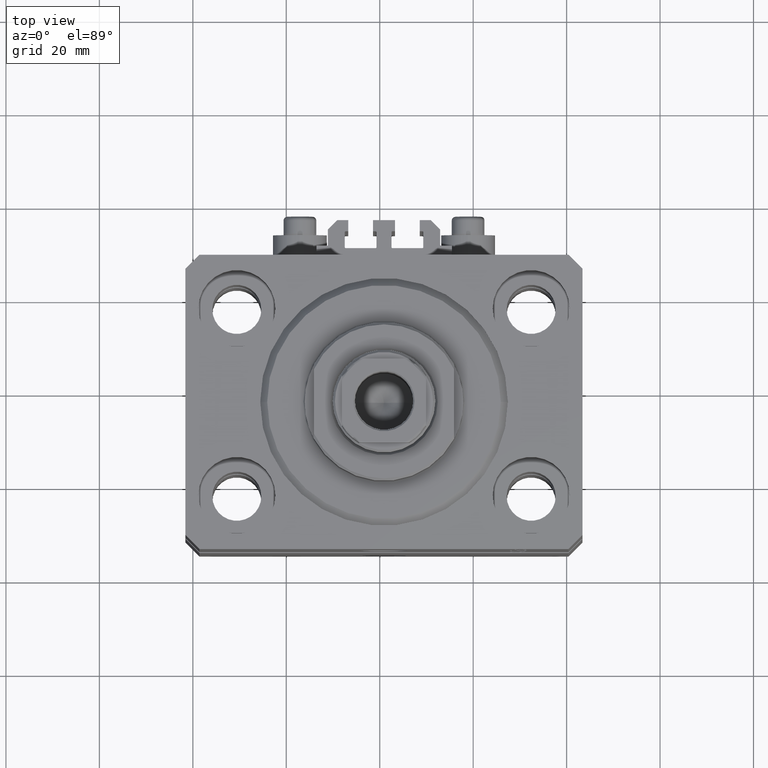
[diagram: clean part render]
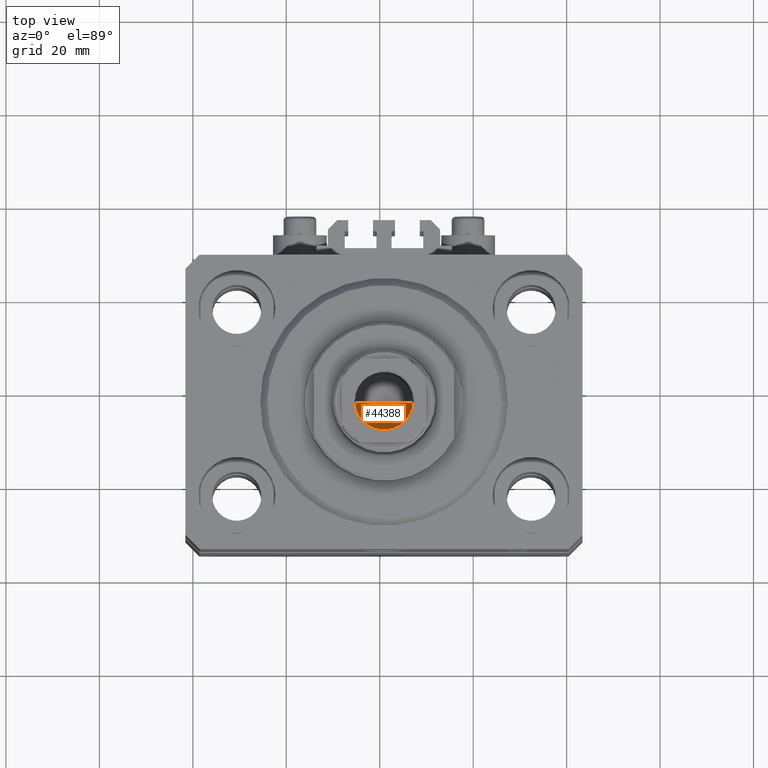
[diagram: same view with one face highlighted and labeled with its STEP entity id]
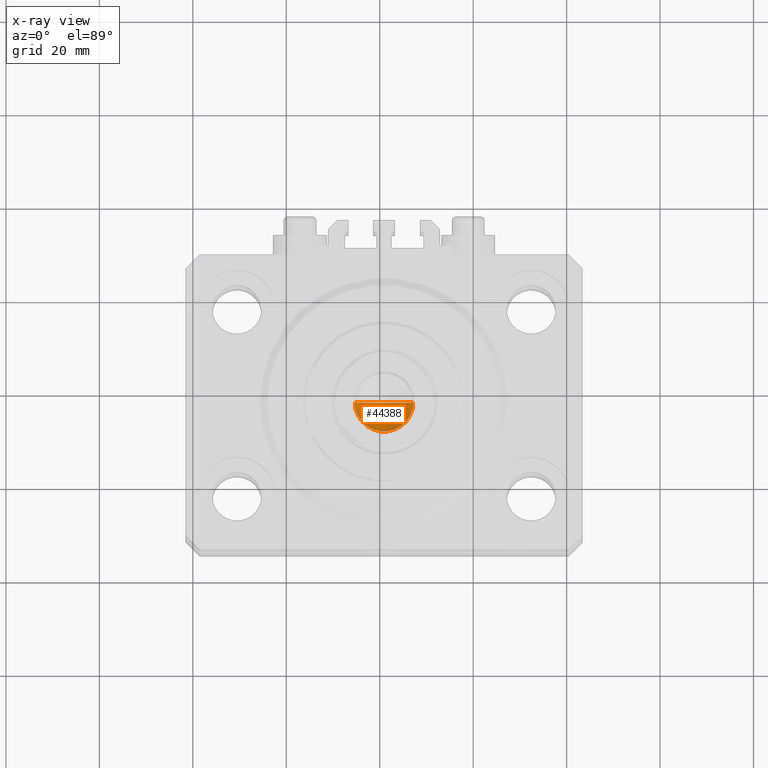
[diagram: x-ray of the same camera — body ghosted, the highlighted face saturated]
A machine part, top view. The second image highlights one B-rep face of the part: STEP entity #44388.
The next image is the same camera in x-ray: the body ghosted, the highlighted face saturated — about 9% of this face is hidden behind the body in this view.
In plain terms, the highlighted conical surface has half-angle 59 deg.
Its self-contained STEP definition (entity closure, byte-faithful):
#41 = VECTOR ( 'NONE', #4473, 1000.000000000000114 ) ;
#755 = VERTEX_POINT ( 'NONE', #16533 ) ;
#4473 = DIRECTION ( 'NONE',  ( -0.8571673007021122226, 1.049727191138618696E-16, 0.5150380749100541555 ) ) ;
#5418 = CIRCLE ( 'NONE', #43050, 6.249999999999993783 ) ;
#7922 = ORIENTED_EDGE ( 'NONE', *, *, #23461, .F. ) ;
#8710 = FACE_OUTER_BOUND ( 'NONE', #16933, .T. ) ;
#12475 = EDGE_CURVE ( 'NONE', #13252, #755, #5418, .T. ) ;
#12762 = VECTOR ( 'NONE', #36251, 1000.000000000000114 ) ;
#13252 = VERTEX_POINT ( 'NONE', #47177 ) ;
#13274 = DIRECTION ( 'NONE',  ( 1.000000000000000000, 0.000000000000000000, 0.000000000000000000 ) ) ;
#14822 = ORIENTED_EDGE ( 'NONE', *, *, #38095, .T. ) ;
#16004 = LINE ( 'NONE', #22979, #41 ) ;
#16533 = CARTESIAN_POINT ( 'NONE',  ( 6.249999999999993783, 0.000000000000000000, 73.59999999999999432 ) ) ;
#16933 = EDGE_LOOP ( 'NONE', ( #7922, #14822, #45841 ) ) ;
#18049 = CARTESIAN_POINT ( 'NONE',  ( 0.000000000000000000, 0.000000000000000000, 73.59999999999999432 ) ) ;
#22979 = CARTESIAN_POINT ( 'NONE',  ( -6.249999999999993783, 7.654042494670949718E-16, 73.59999999999999432 ) ) ;
#23461 = EDGE_CURVE ( 'NONE', #38641, #755, #43919, .T. ) ;
#25524 = CONICAL_SURFACE ( 'NONE', #37071, 6.249999999999993783, 1.029744258676654534 ) ;
#27463 = DIRECTION ( 'NONE',  ( -0.000000000000000000, -0.000000000000000000, 1.000000000000000000 ) ) ;
#30752 = CARTESIAN_POINT ( 'NONE',  ( -7.434177670704979810E-15, 0.000000000000000000, 69.84462113107775849 ) ) ;
#32982 = DIRECTION ( 'NONE',  ( -0.000000000000000000, -0.000000000000000000, 1.000000000000000000 ) ) ;
#36251 = DIRECTION ( 'NONE',  ( 0.8571673007021122226, 0.000000000000000000, 0.5150380749100541555 ) ) ;
#37071 = AXIS2_PLACEMENT_3D ( 'NONE', #45980, #27463, #13274 ) ;
#38095 = EDGE_CURVE ( 'NONE', #38641, #13252, #16004, .T. ) ;
#38641 = VERTEX_POINT ( 'NONE', #30752 ) ;
#43050 = AXIS2_PLACEMENT_3D ( 'NONE', #18049, #32982, #44248 ) ;
#43687 = CARTESIAN_POINT ( 'NONE',  ( 6.249999999999993783, 0.000000000000000000, 73.59999999999999432 ) ) ;
#43919 = LINE ( 'NONE', #43687, #12762 ) ;
#44248 = DIRECTION ( 'NONE',  ( 1.000000000000000000, 0.000000000000000000, 0.000000000000000000 ) ) ;
#44388 = ADVANCED_FACE ( 'NONE', ( #8710 ), #25524, .F. ) ;
#45841 = ORIENTED_EDGE ( 'NONE', *, *, #12475, .T. ) ;
#45980 = CARTESIAN_POINT ( 'NONE',  ( 0.000000000000000000, 0.000000000000000000, 73.59999999999999432 ) ) ;
#47177 = CARTESIAN_POINT ( 'NONE',  ( -6.249999999999993783, 7.654042494670949718E-16, 73.59999999999999432 ) ) ;